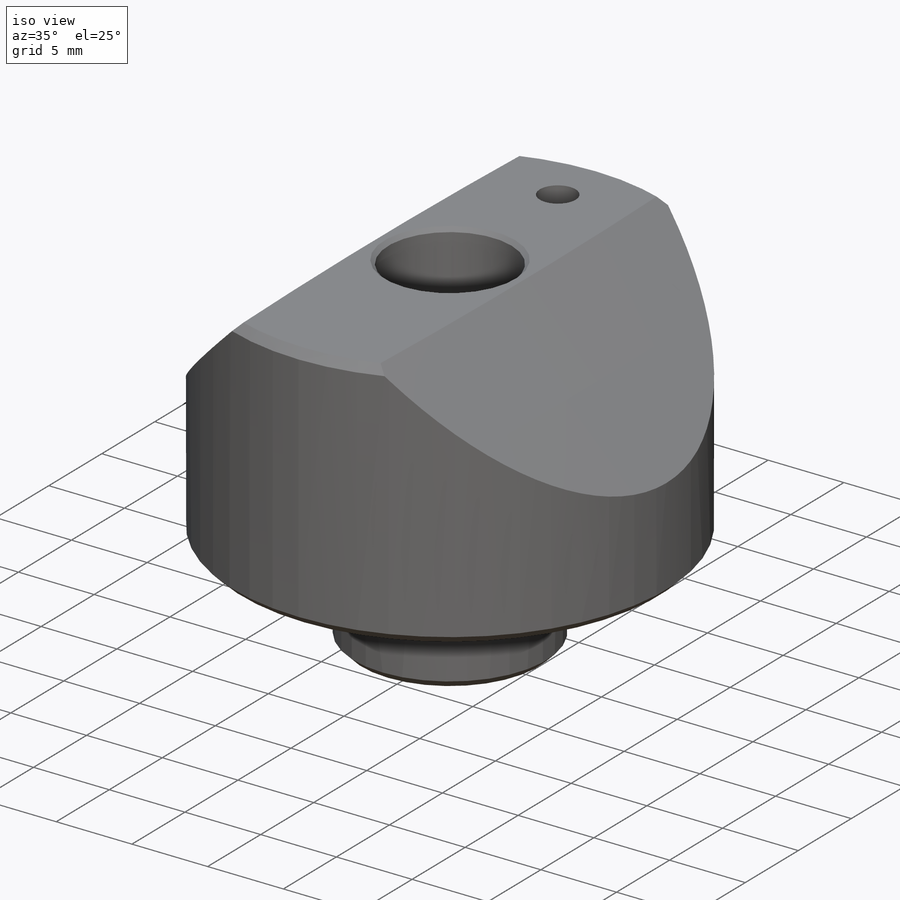
[diagram: iso view]
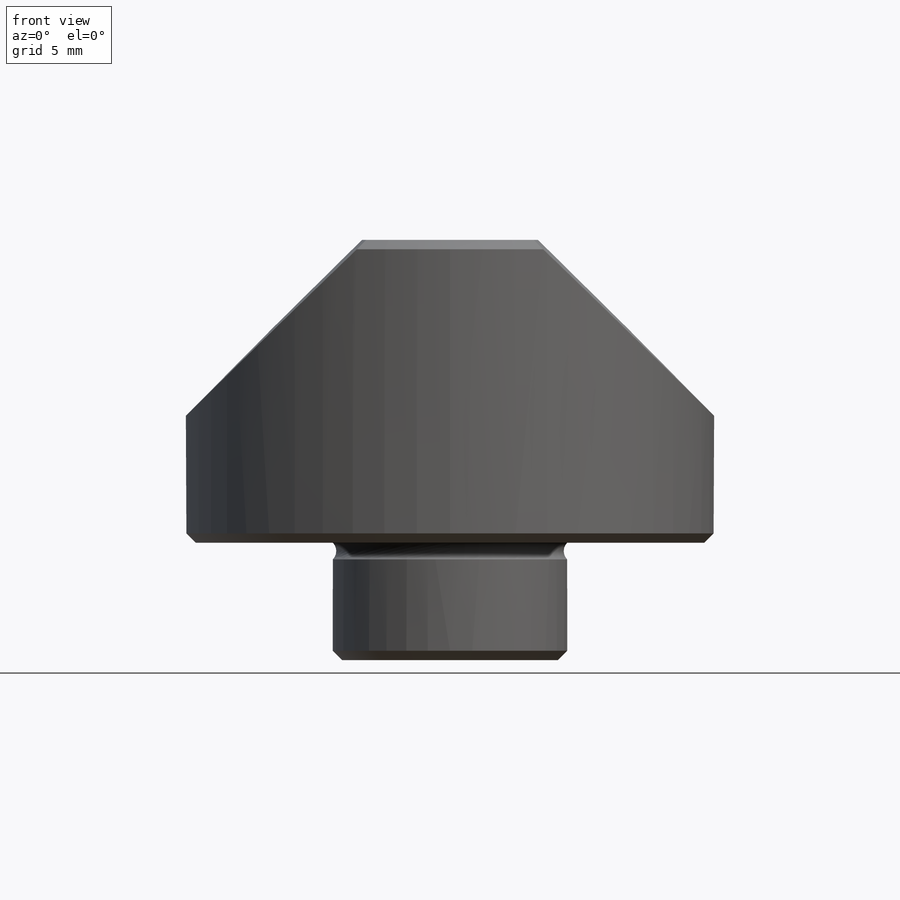
[diagram: front view]
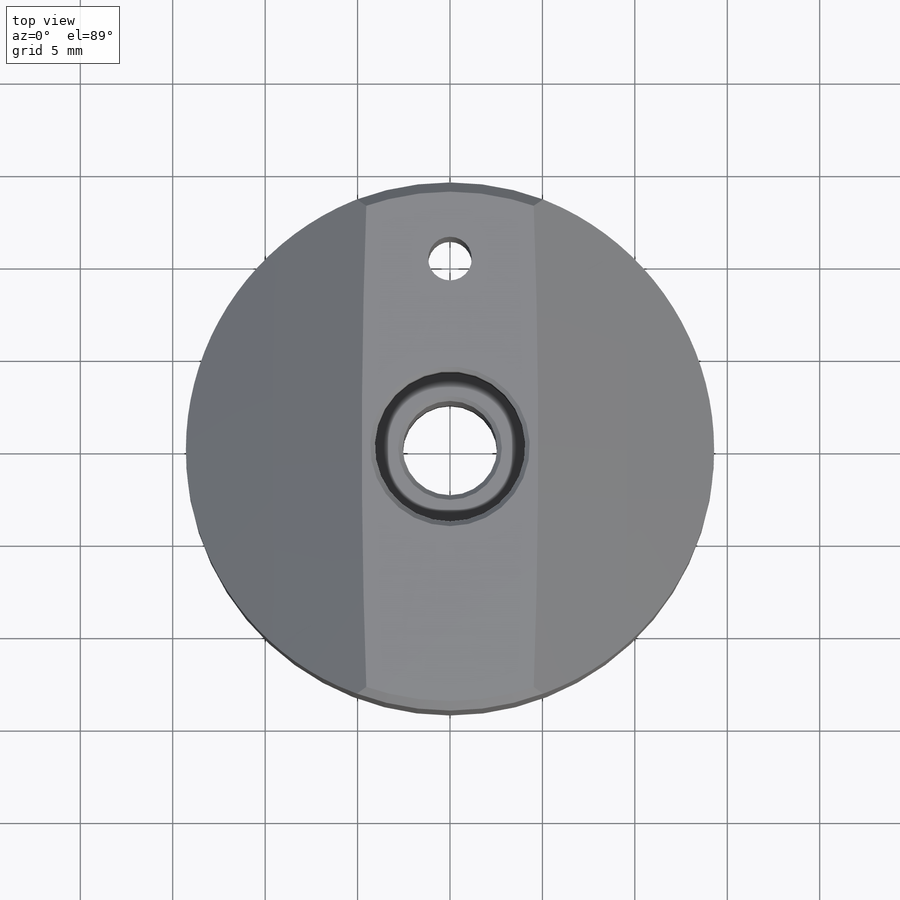
[diagram: top view]
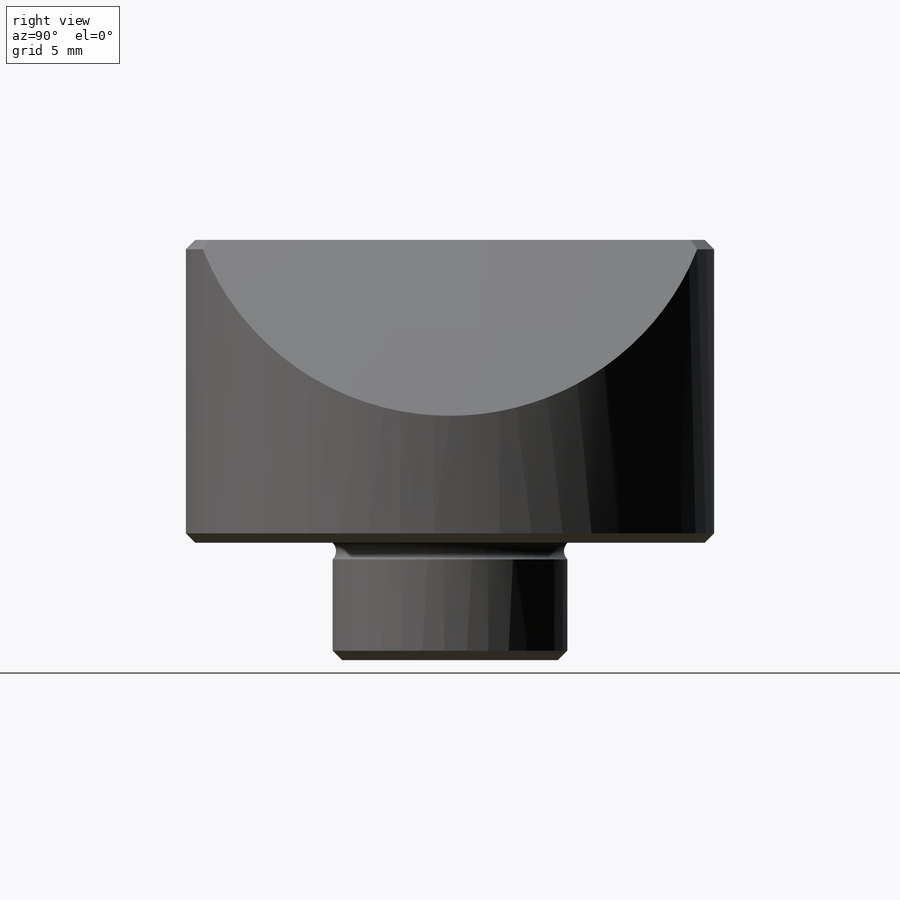
[diagram: right view]
SOLIDWORKS PART (.sldprt)
format: sldprt  version: not decoded by parser v0  size: 279,040 bytes
history: native  units: mm
features: sketch x11, extrude x2, cut_extrude x2, chamfer x2, cut_revolve x2, hole x2, material x1, mirror x1, thread x1 (+13 scaffold rows collapsed)
feature tree (37):
  scaffold x13  (default folders/planes/origin — collapsed)
  material  "440C Rc 58"
  sketch  "Sketch1"  dims[D1=28.575mm]
  extrude  "Boss-Extrude1"  Depth=16.383mm
  sketch  "Sketch2"  dims[D1=12.7mm]
  extrude  "Boss-Extrude2"  Depth=6.35mm
  sketch  "Sketch4"  dims[D2=2.3622mm D1=10.16mm]
  cut_extrude  "Cut-Extrude1"  [1 undecoded]
  chamfer  "Chamfer1"  Distance=0.508mm Angle=45deg
  sketch  "Sketch5"
  cut_extrude  "Cut-Extrude2"  Depth=37.846mm
  sketch  "Sketch6"  dims[D4=499.999mm D1=499.999mm D2=~20.777423mm D3=~21.537658mm]
  cut_revolve  "Cut-Revolve1"  Angle=5deg
  mirror  "Mirror1"
  sketch  "Sketch7"  dims[D1=1.27mm]
  cut_revolve  "Cut-Revolve2"  Angle=360deg
  hole  "1/4-20 Tapped Hole1"  [1 undecoded]
  sketch  "Sketch9"
  thread  "Hole Thread1"  Diameter=6.35mm  [1 undecoded]
  sketch  "Sketch8"  dims[hole-wizard template sketch: 60 standard entries collapsed; hole parameters kept: c18.Thru Tap Drill Depth=22.733mm]
  hole  "Hole1"  Diameter=8.128mm Depth=5.08mm
  sketch  "Sketch12"
  sketch  "Sketch11"  dims[Diameter=8.128mm Depth=5.08mm]
  chamfer  "Chamfer2"  Distance=0.254mm Angle=45deg
  sketch  "Tangent point of contact with VB height"
decode coverage: 16 of 23 modeling features carry decoded parameters
note: ~ marks probable driven/reference dimensions
note: 3 parameter values undecoded
note: suppression state not decoded; provenance and decode notes live in map.json
